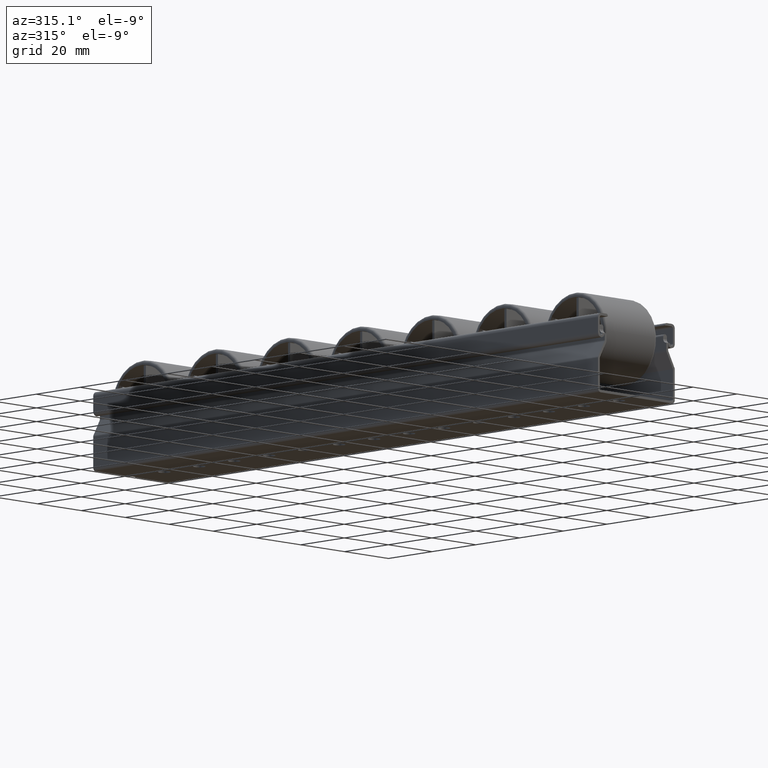
[diagram: clean part render]
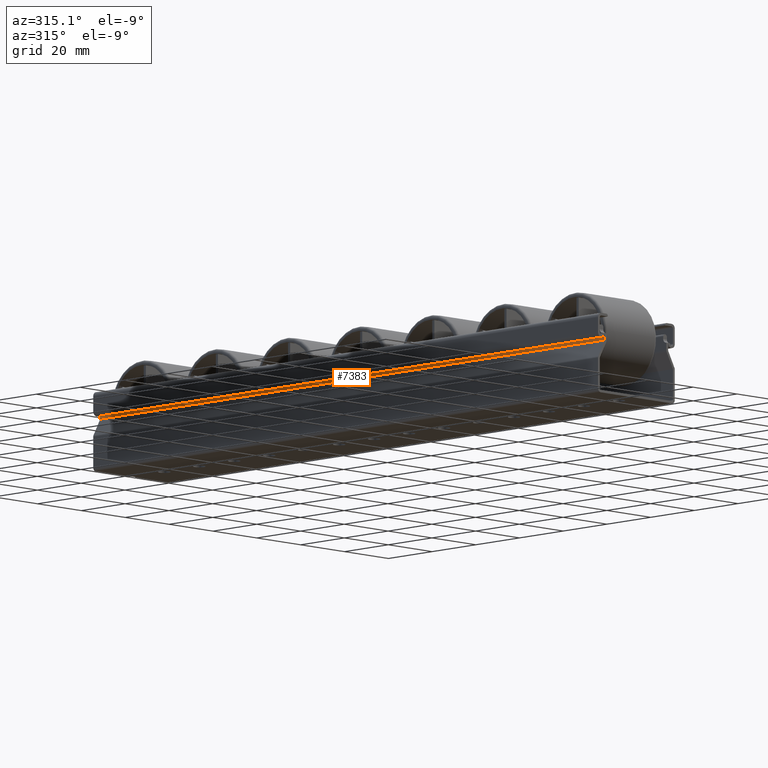
[diagram: same view with one face highlighted and labeled with its STEP entity id]
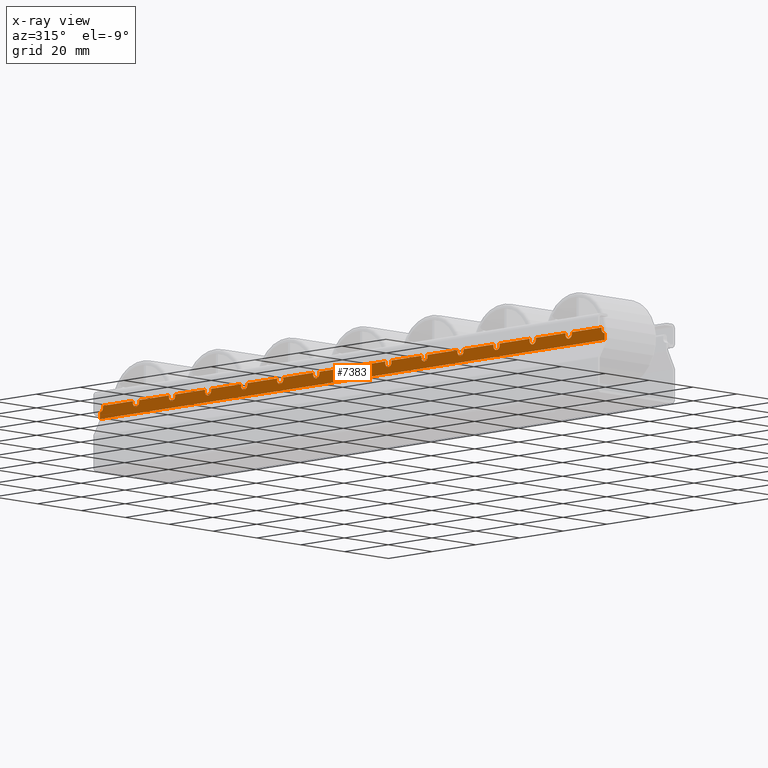
[diagram: x-ray of the same camera — body ghosted, the highlighted face saturated]
A machine part, auxiliary view. The second image highlights one B-rep face of the part: STEP entity #7383.
The next image is the same camera in x-ray: the body ghosted, the highlighted face saturated — about 0% of this face is hidden behind the body in this view.
In plain terms, the highlighted planar face has unit normal (-1, -0, -0).
Its self-contained STEP definition (entity closure, byte-faithful):
#515=FACE_OUTER_BOUND('',#874,.T.);
#874=EDGE_LOOP('',(#6220,#6221,#6222,#6223,#6224,#6225,#6226,#6227,#6228,
#6229,#6230,#6231,#6232,#6233,#6234,#6235,#6236,#6237,#6238,#6239,#6240,
#6241,#6242,#6243,#6244,#6245,#6246,#6247,#6248,#6249,#6250,#6251,#6252,
#6253,#6254,#6255,#6256,#6257,#6258,#6259,#6260,#6261,#6262,#6263,#6264,
#6265,#6266,#6267,#6268,#6269,#6270,#6271,#6272,#6273,#6274,#6275,#6276,
#6277,#6278,#6279));
#1069=CIRCLE('',#7530,1.425);
#1091=CIRCLE('',#7561,1.425);
#1111=CIRCLE('',#7589,1.425);
#1131=CIRCLE('',#7617,1.425);
#1151=CIRCLE('',#7645,1.425);
#1171=CIRCLE('',#7673,1.425);
#1191=CIRCLE('',#7701,1.425);
#1211=CIRCLE('',#7729,1.425);
#1231=CIRCLE('',#7757,1.425);
#1251=CIRCLE('',#7785,1.425);
#1271=CIRCLE('',#7813,1.425);
#1291=CIRCLE('',#7841,1.425);
#1311=CIRCLE('',#7869,1.425);
#1331=CIRCLE('',#7897,1.425);
#1359=CIRCLE('',#8043,1.425);
#1482=LINE('',#10601,#2178);
#1512=LINE('',#10716,#2208);
#1518=LINE('',#10735,#2214);
#1536=LINE('',#10804,#2232);
#1542=LINE('',#10823,#2238);
#1560=LINE('',#10892,#2256);
#1566=LINE('',#10911,#2262);
#1584=LINE('',#10980,#2280);
#1590=LINE('',#10999,#2286);
#1608=LINE('',#11068,#2304);
#1614=LINE('',#11087,#2310);
#1632=LINE('',#11156,#2328);
#1638=LINE('',#11175,#2334);
#1656=LINE('',#11244,#2352);
#1662=LINE('',#11263,#2358);
#1680=LINE('',#11332,#2376);
#1686=LINE('',#11351,#2382);
#1704=LINE('',#11420,#2400);
#1710=LINE('',#11439,#2406);
#1728=LINE('',#11508,#2424);
#1734=LINE('',#11527,#2430);
#1752=LINE('',#11596,#2448);
#1758=LINE('',#11615,#2454);
#1776=LINE('',#11684,#2472);
#1782=LINE('',#11703,#2478);
#1800=LINE('',#11772,#2496);
#1806=LINE('',#11791,#2502);
#1944=LINE('',#12078,#2640);
#1945=LINE('',#12081,#2641);
#1946=LINE('',#12083,#2642);
#1947=LINE('',#12085,#2643);
#1948=LINE('',#12087,#2644);
#1949=LINE('',#12089,#2645);
#1950=LINE('',#12091,#2646);
#1951=LINE('',#12093,#2647);
#1952=LINE('',#12095,#2648);
#1953=LINE('',#12097,#2649);
#1954=LINE('',#12099,#2650);
#1955=LINE('',#12101,#2651);
#1956=LINE('',#12103,#2652);
#2010=LINE('',#12204,#2706);
#2011=LINE('',#12207,#2707);
#2012=LINE('',#12209,#2708);
#2013=LINE('',#12210,#2709);
#2014=LINE('',#12211,#2710);
#2178=VECTOR('',#8315,0.549999999999994);
#2208=VECTOR('',#8419,0.549999999999994);
#2214=VECTOR('',#8435,0.549999999999993);
#2232=VECTOR('',#8499,0.549999999999994);
#2238=VECTOR('',#8515,0.549999999999993);
#2256=VECTOR('',#8579,0.549999999999994);
#2262=VECTOR('',#8595,0.549999999999993);
#2280=VECTOR('',#8659,0.549999999999994);
#2286=VECTOR('',#8675,0.549999999999993);
#2304=VECTOR('',#8739,0.549999999999994);
#2310=VECTOR('',#8755,0.549999999999993);
#2328=VECTOR('',#8819,0.549999999999994);
#2334=VECTOR('',#8835,0.549999999999993);
#2352=VECTOR('',#8899,0.549999999999994);
#2358=VECTOR('',#8915,0.549999999999993);
#2376=VECTOR('',#8979,0.549999999999994);
#2382=VECTOR('',#8995,0.549999999999993);
#2400=VECTOR('',#9059,0.549999999999994);
#2406=VECTOR('',#9075,0.549999999999993);
#2424=VECTOR('',#9139,0.549999999999994);
#2430=VECTOR('',#9155,0.549999999999993);
#2448=VECTOR('',#9219,0.549999999999994);
#2454=VECTOR('',#9235,0.549999999999993);
#2472=VECTOR('',#9299,0.549999999999994);
#2478=VECTOR('',#9315,0.549999999999993);
#2496=VECTOR('',#9379,0.549999999999994);
#2502=VECTOR('',#9395,0.549999999999993);
#2640=VECTOR('',#9733,13.65);
#2641=VECTOR('',#9738,13.65);
#2642=VECTOR('',#9741,13.65);
#2643=VECTOR('',#9744,13.65);
#2644=VECTOR('',#9747,13.65);
#2645=VECTOR('',#9750,13.65);
#2646=VECTOR('',#9753,13.65);
#2647=VECTOR('',#9756,13.65);
#2648=VECTOR('',#9759,13.65);
#2649=VECTOR('',#9762,13.65);
#2650=VECTOR('',#9765,13.65);
#2651=VECTOR('',#9768,13.6499999999999);
#2652=VECTOR('',#9771,13.65);
#2706=VECTOR('',#9901,0.549999999999993);
#2707=VECTOR('',#9904,2.24523883871566);
#2708=VECTOR('',#9905,231.);
#2709=VECTOR('',#9906,2.24523883871566);
#2710=VECTOR('',#9907,13.65);
#2874=VERTEX_POINT('',#10598);
#2875=VERTEX_POINT('',#10600);
#2893=VERTEX_POINT('',#10643);
#2922=VERTEX_POINT('',#10713);
#2923=VERTEX_POINT('',#10715);
#2930=VERTEX_POINT('',#10732);
#2931=VERTEX_POINT('',#10734);
#2958=VERTEX_POINT('',#10801);
#2959=VERTEX_POINT('',#10803);
#2966=VERTEX_POINT('',#10820);
#2967=VERTEX_POINT('',#10822);
#2994=VERTEX_POINT('',#10889);
#2995=VERTEX_POINT('',#10891);
#3002=VERTEX_POINT('',#10908);
#3003=VERTEX_POINT('',#10910);
#3030=VERTEX_POINT('',#10977);
#3031=VERTEX_POINT('',#10979);
#3038=VERTEX_POINT('',#10996);
#3039=VERTEX_POINT('',#10998);
#3066=VERTEX_POINT('',#11065);
#3067=VERTEX_POINT('',#11067);
#3074=VERTEX_POINT('',#11084);
#3075=VERTEX_POINT('',#11086);
#3102=VERTEX_POINT('',#11153);
#3103=VERTEX_POINT('',#11155);
#3110=VERTEX_POINT('',#11172);
#3111=VERTEX_POINT('',#11174);
#3138=VERTEX_POINT('',#11241);
#3139=VERTEX_POINT('',#11243);
#3146=VERTEX_POINT('',#11260);
#3147=VERTEX_POINT('',#11262);
#3174=VERTEX_POINT('',#11329);
#3175=VERTEX_POINT('',#11331);
#3182=VERTEX_POINT('',#11348);
#3183=VERTEX_POINT('',#11350);
#3210=VERTEX_POINT('',#11417);
#3211=VERTEX_POINT('',#11419);
#3218=VERTEX_POINT('',#11436);
#3219=VERTEX_POINT('',#11438);
#3246=VERTEX_POINT('',#11505);
#3247=VERTEX_POINT('',#11507);
#3254=VERTEX_POINT('',#11524);
#3255=VERTEX_POINT('',#11526);
#3282=VERTEX_POINT('',#11593);
#3283=VERTEX_POINT('',#11595);
#3290=VERTEX_POINT('',#11612);
#3291=VERTEX_POINT('',#11614);
#3318=VERTEX_POINT('',#11681);
#3319=VERTEX_POINT('',#11683);
#3326=VERTEX_POINT('',#11700);
#3327=VERTEX_POINT('',#11702);
#3354=VERTEX_POINT('',#11769);
#3355=VERTEX_POINT('',#11771);
#3362=VERTEX_POINT('',#11788);
#3363=VERTEX_POINT('',#11790);
#3412=VERTEX_POINT('',#12077);
#3420=VERTEX_POINT('',#12197);
#3421=VERTEX_POINT('',#12199);
#3422=VERTEX_POINT('',#12206);
#3423=VERTEX_POINT('',#12208);
#3612=EDGE_CURVE('',#2875,#2874,#1482,.T.);
#3634=EDGE_CURVE('',#2874,#2893,#1069,.T.);
#3668=EDGE_CURVE('',#2923,#2922,#1512,.T.);
#3678=EDGE_CURVE('',#2931,#2930,#1518,.T.);
#3681=EDGE_CURVE('',#2922,#2931,#1091,.T.);
#3712=EDGE_CURVE('',#2959,#2958,#1536,.T.);
#3722=EDGE_CURVE('',#2967,#2966,#1542,.T.);
#3725=EDGE_CURVE('',#2958,#2967,#1111,.T.);
#3756=EDGE_CURVE('',#2995,#2994,#1560,.T.);
#3766=EDGE_CURVE('',#3003,#3002,#1566,.T.);
#3769=EDGE_CURVE('',#2994,#3003,#1131,.T.);
#3800=EDGE_CURVE('',#3031,#3030,#1584,.T.);
#3810=EDGE_CURVE('',#3039,#3038,#1590,.T.);
#3813=EDGE_CURVE('',#3030,#3039,#1151,.T.);
#3844=EDGE_CURVE('',#3067,#3066,#1608,.T.);
#3854=EDGE_CURVE('',#3075,#3074,#1614,.T.);
#3857=EDGE_CURVE('',#3066,#3075,#1171,.T.);
#3888=EDGE_CURVE('',#3103,#3102,#1632,.T.);
#3898=EDGE_CURVE('',#3111,#3110,#1638,.T.);
#3901=EDGE_CURVE('',#3102,#3111,#1191,.T.);
#3932=EDGE_CURVE('',#3139,#3138,#1656,.T.);
#3942=EDGE_CURVE('',#3147,#3146,#1662,.T.);
#3945=EDGE_CURVE('',#3138,#3147,#1211,.T.);
#3976=EDGE_CURVE('',#3175,#3174,#1680,.T.);
#3986=EDGE_CURVE('',#3183,#3182,#1686,.T.);
#3989=EDGE_CURVE('',#3174,#3183,#1231,.T.);
#4020=EDGE_CURVE('',#3211,#3210,#1704,.T.);
#4030=EDGE_CURVE('',#3219,#3218,#1710,.T.);
#4033=EDGE_CURVE('',#3210,#3219,#1251,.T.);
#4064=EDGE_CURVE('',#3247,#3246,#1728,.T.);
#4074=EDGE_CURVE('',#3255,#3254,#1734,.T.);
#4077=EDGE_CURVE('',#3246,#3255,#1271,.T.);
#4108=EDGE_CURVE('',#3283,#3282,#1752,.T.);
#4118=EDGE_CURVE('',#3291,#3290,#1758,.T.);
#4121=EDGE_CURVE('',#3282,#3291,#1291,.T.);
#4152=EDGE_CURVE('',#3319,#3318,#1776,.T.);
#4162=EDGE_CURVE('',#3327,#3326,#1782,.T.);
#4165=EDGE_CURVE('',#3318,#3327,#1311,.T.);
#4196=EDGE_CURVE('',#3355,#3354,#1800,.T.);
#4206=EDGE_CURVE('',#3363,#3362,#1806,.T.);
#4209=EDGE_CURVE('',#3354,#3363,#1331,.T.);
#4369=EDGE_CURVE('',#3412,#3355,#1944,.T.);
#4371=EDGE_CURVE('',#3362,#3319,#1945,.T.);
#4372=EDGE_CURVE('',#3326,#3283,#1946,.T.);
#4373=EDGE_CURVE('',#3290,#3247,#1947,.T.);
#4374=EDGE_CURVE('',#3254,#3211,#1948,.T.);
#4375=EDGE_CURVE('',#3218,#3175,#1949,.T.);
#4376=EDGE_CURVE('',#3182,#3139,#1950,.T.);
#4377=EDGE_CURVE('',#3146,#3103,#1951,.T.);
#4378=EDGE_CURVE('',#3110,#3067,#1952,.T.);
#4379=EDGE_CURVE('',#3074,#3031,#1953,.T.);
#4380=EDGE_CURVE('',#3038,#2995,#1954,.T.);
#4381=EDGE_CURVE('',#3002,#2959,#1955,.T.);
#4382=EDGE_CURVE('',#2966,#2923,#1956,.T.);
#4438=EDGE_CURVE('',#3421,#3420,#1359,.T.);
#4440=EDGE_CURVE('',#3420,#3412,#2010,.T.);
#4441=EDGE_CURVE('',#3422,#2893,#2011,.T.);
#4442=EDGE_CURVE('',#3423,#3422,#2012,.T.);
#4443=EDGE_CURVE('',#3421,#3423,#2013,.T.);
#4444=EDGE_CURVE('',#2930,#2875,#2014,.T.);
#6220=ORIENTED_EDGE('',*,*,#3634,.T.);
#6221=ORIENTED_EDGE('',*,*,#4441,.F.);
#6222=ORIENTED_EDGE('',*,*,#4442,.F.);
#6223=ORIENTED_EDGE('',*,*,#4443,.F.);
#6224=ORIENTED_EDGE('',*,*,#4438,.T.);
#6225=ORIENTED_EDGE('',*,*,#4440,.T.);
#6226=ORIENTED_EDGE('',*,*,#4369,.T.);
#6227=ORIENTED_EDGE('',*,*,#4196,.T.);
#6228=ORIENTED_EDGE('',*,*,#4209,.T.);
#6229=ORIENTED_EDGE('',*,*,#4206,.T.);
#6230=ORIENTED_EDGE('',*,*,#4371,.T.);
#6231=ORIENTED_EDGE('',*,*,#4152,.T.);
#6232=ORIENTED_EDGE('',*,*,#4165,.T.);
#6233=ORIENTED_EDGE('',*,*,#4162,.T.);
#6234=ORIENTED_EDGE('',*,*,#4372,.T.);
#6235=ORIENTED_EDGE('',*,*,#4108,.T.);
#6236=ORIENTED_EDGE('',*,*,#4121,.T.);
#6237=ORIENTED_EDGE('',*,*,#4118,.T.);
#6238=ORIENTED_EDGE('',*,*,#4373,.T.);
#6239=ORIENTED_EDGE('',*,*,#4064,.T.);
#6240=ORIENTED_EDGE('',*,*,#4077,.T.);
#6241=ORIENTED_EDGE('',*,*,#4074,.T.);
#6242=ORIENTED_EDGE('',*,*,#4374,.T.);
#6243=ORIENTED_EDGE('',*,*,#4020,.T.);
#6244=ORIENTED_EDGE('',*,*,#4033,.T.);
#6245=ORIENTED_EDGE('',*,*,#4030,.T.);
#6246=ORIENTED_EDGE('',*,*,#4375,.T.);
#6247=ORIENTED_EDGE('',*,*,#3976,.T.);
#6248=ORIENTED_EDGE('',*,*,#3989,.T.);
#6249=ORIENTED_EDGE('',*,*,#3986,.T.);
#6250=ORIENTED_EDGE('',*,*,#4376,.T.);
#6251=ORIENTED_EDGE('',*,*,#3932,.T.);
#6252=ORIENTED_EDGE('',*,*,#3945,.T.);
#6253=ORIENTED_EDGE('',*,*,#3942,.T.);
#6254=ORIENTED_EDGE('',*,*,#4377,.T.);
#6255=ORIENTED_EDGE('',*,*,#3888,.T.);
#6256=ORIENTED_EDGE('',*,*,#3901,.T.);
#6257=ORIENTED_EDGE('',*,*,#3898,.T.);
#6258=ORIENTED_EDGE('',*,*,#4378,.T.);
#6259=ORIENTED_EDGE('',*,*,#3844,.T.);
#6260=ORIENTED_EDGE('',*,*,#3857,.T.);
#6261=ORIENTED_EDGE('',*,*,#3854,.T.);
#6262=ORIENTED_EDGE('',*,*,#4379,.T.);
#6263=ORIENTED_EDGE('',*,*,#3800,.T.);
#6264=ORIENTED_EDGE('',*,*,#3813,.T.);
#6265=ORIENTED_EDGE('',*,*,#3810,.T.);
#6266=ORIENTED_EDGE('',*,*,#4380,.T.);
#6267=ORIENTED_EDGE('',*,*,#3756,.T.);
#6268=ORIENTED_EDGE('',*,*,#3769,.T.);
#6269=ORIENTED_EDGE('',*,*,#3766,.T.);
#6270=ORIENTED_EDGE('',*,*,#4381,.T.);
#6271=ORIENTED_EDGE('',*,*,#3712,.T.);
#6272=ORIENTED_EDGE('',*,*,#3725,.T.);
#6273=ORIENTED_EDGE('',*,*,#3722,.T.);
#6274=ORIENTED_EDGE('',*,*,#4382,.T.);
#6275=ORIENTED_EDGE('',*,*,#3668,.T.);
#6276=ORIENTED_EDGE('',*,*,#3681,.T.);
#6277=ORIENTED_EDGE('',*,*,#3678,.T.);
#6278=ORIENTED_EDGE('',*,*,#4444,.T.);
#6279=ORIENTED_EDGE('',*,*,#3612,.T.);
#7073=PLANE('',#8046);
#7383=ADVANCED_FACE('',(#515),#7073,.T.);
#7530=AXIS2_PLACEMENT_3D('',#10645,#8354,#8355);
#7561=AXIS2_PLACEMENT_3D('',#10739,#8441,#8442);
#7589=AXIS2_PLACEMENT_3D('',#10827,#8521,#8522);
#7617=AXIS2_PLACEMENT_3D('',#10915,#8601,#8602);
#7645=AXIS2_PLACEMENT_3D('',#11003,#8681,#8682);
#7673=AXIS2_PLACEMENT_3D('',#11091,#8761,#8762);
#7701=AXIS2_PLACEMENT_3D('',#11179,#8841,#8842);
#7729=AXIS2_PLACEMENT_3D('',#11267,#8921,#8922);
#7757=AXIS2_PLACEMENT_3D('',#11355,#9001,#9002);
#7785=AXIS2_PLACEMENT_3D('',#11443,#9081,#9082);
#7813=AXIS2_PLACEMENT_3D('',#11531,#9161,#9162);
#7841=AXIS2_PLACEMENT_3D('',#11619,#9241,#9242);
#7869=AXIS2_PLACEMENT_3D('',#11707,#9321,#9322);
#7897=AXIS2_PLACEMENT_3D('',#11795,#9401,#9402);
#8043=AXIS2_PLACEMENT_3D('',#12200,#9894,#9895);
#8046=AXIS2_PLACEMENT_3D('',#12205,#9902,#9903);
#8315=DIRECTION('',(-1.05228454317816E-15,-1.,0.));
#8354=DIRECTION('center_axis',(-1.,1.05228454317816E-15,0.));
#8355=DIRECTION('ref_axis',(8.79043762949531E-32,-1.94775969232484E-16,
-1.));
#8419=DIRECTION('',(-1.05228454317816E-15,-1.,0.));
#8435=DIRECTION('',(1.05228454317816E-15,1.,0.));
#8441=DIRECTION('center_axis',(-1.,1.05228454317816E-15,0.));
#8442=DIRECTION('ref_axis',(8.79043762949531E-32,-1.94775969232484E-16,
-1.));
#8499=DIRECTION('',(-1.05228454317816E-15,-1.,0.));
#8515=DIRECTION('',(1.05228454317816E-15,1.,0.));
#8521=DIRECTION('center_axis',(-1.,1.05228454317816E-15,0.));
#8522=DIRECTION('ref_axis',(8.79043762949531E-32,-1.94775969232484E-16,
-1.));
#8579=DIRECTION('',(-1.05228454317816E-15,-1.,0.));
#8595=DIRECTION('',(1.05228454317816E-15,1.,0.));
#8601=DIRECTION('center_axis',(-1.,1.05228454317816E-15,0.));
#8602=DIRECTION('ref_axis',(8.79043762949531E-32,-1.94775969232484E-16,
-1.));
#8659=DIRECTION('',(-1.05228454317816E-15,-1.,0.));
#8675=DIRECTION('',(1.05228454317816E-15,1.,0.));
#8681=DIRECTION('center_axis',(-1.,1.05228454317816E-15,0.));
#8682=DIRECTION('ref_axis',(8.79043762949531E-32,-1.94775969232484E-16,
-1.));
#8739=DIRECTION('',(-1.05228454317816E-15,-1.,0.));
#8755=DIRECTION('',(1.05228454317816E-15,1.,0.));
#8761=DIRECTION('center_axis',(-1.,1.05228454317816E-15,0.));
#8762=DIRECTION('ref_axis',(8.79043762949531E-32,-1.94775969232484E-16,
-1.));
#8819=DIRECTION('',(-1.05228454317816E-15,-1.,0.));
#8835=DIRECTION('',(1.05228454317816E-15,1.,0.));
#8841=DIRECTION('center_axis',(-1.,1.05228454317816E-15,0.));
#8842=DIRECTION('ref_axis',(8.79043762949531E-32,-1.94775969232484E-16,
-1.));
#8899=DIRECTION('',(-1.05228454317816E-15,-1.,0.));
#8915=DIRECTION('',(1.05228454317816E-15,1.,0.));
#8921=DIRECTION('center_axis',(-1.,1.05228454317816E-15,0.));
#8922=DIRECTION('ref_axis',(8.79043762949531E-32,-1.94775969232484E-16,
-1.));
#8979=DIRECTION('',(-1.05228454317816E-15,-1.,0.));
#8995=DIRECTION('',(1.05228454317816E-15,1.,0.));
#9001=DIRECTION('center_axis',(-1.,1.05228454317816E-15,0.));
#9002=DIRECTION('ref_axis',(8.79043762949531E-32,-1.94775969232484E-16,
-1.));
#9059=DIRECTION('',(-1.05228454317816E-15,-1.,0.));
#9075=DIRECTION('',(1.05228454317816E-15,1.,0.));
#9081=DIRECTION('center_axis',(-1.,1.05228454317816E-15,0.));
#9082=DIRECTION('ref_axis',(8.79043762949531E-32,-1.94775969232484E-16,
-1.));
#9139=DIRECTION('',(-1.05228454317816E-15,-1.,0.));
#9155=DIRECTION('',(1.05228454317816E-15,1.,0.));
#9161=DIRECTION('center_axis',(-1.,1.05228454317816E-15,0.));
#9162=DIRECTION('ref_axis',(8.79043762949531E-32,-1.94775969232484E-16,
-1.));
#9219=DIRECTION('',(-1.05228454317816E-15,-1.,0.));
#9235=DIRECTION('',(1.05228454317816E-15,1.,0.));
#9241=DIRECTION('center_axis',(-1.,1.05228454317816E-15,0.));
#9242=DIRECTION('ref_axis',(8.79043762949531E-32,-1.94775969232484E-16,
-1.));
#9299=DIRECTION('',(-1.05228454317816E-15,-1.,0.));
#9315=DIRECTION('',(1.05228454317816E-15,1.,0.));
#9321=DIRECTION('center_axis',(-1.,1.05228454317816E-15,0.));
#9322=DIRECTION('ref_axis',(8.79043762949531E-32,-1.94775969232484E-16,
-1.));
#9379=DIRECTION('',(-1.05228454317816E-15,-1.,0.));
#9395=DIRECTION('',(1.05228454317816E-15,1.,0.));
#9401=DIRECTION('center_axis',(-1.,1.05228454317816E-15,0.));
#9402=DIRECTION('ref_axis',(8.79043762949531E-32,-1.94775969232484E-16,
-1.));
#9733=DIRECTION('',(0.,0.,1.));
#9738=DIRECTION('',(0.,0.,1.));
#9741=DIRECTION('',(0.,0.,1.));
#9744=DIRECTION('',(0.,0.,1.));
#9747=DIRECTION('',(0.,0.,1.));
#9750=DIRECTION('',(0.,0.,1.));
#9753=DIRECTION('',(0.,0.,1.));
#9756=DIRECTION('',(0.,0.,1.));
#9759=DIRECTION('',(0.,0.,1.));
#9762=DIRECTION('',(0.,0.,1.));
#9765=DIRECTION('',(0.,0.,1.));
#9768=DIRECTION('',(0.,0.,1.));
#9771=DIRECTION('',(0.,0.,1.));
#9894=DIRECTION('center_axis',(-1.,1.05228454317816E-15,0.));
#9895=DIRECTION('ref_axis',(8.79043762949531E-32,-1.94775969232484E-16,
-1.));
#9901=DIRECTION('',(1.05228454317816E-15,1.,0.));
#9902=DIRECTION('center_axis',(1.,-1.05228454317816E-15,0.));
#9903=DIRECTION('ref_axis',(1.06581410364015E-15,1.,0.));
#9904=DIRECTION('',(1.05228454317816E-15,1.,0.));
#9905=DIRECTION('',(0.,0.,1.));
#9906=DIRECTION('',(-1.05228454317816E-15,-1.,0.));
#9907=DIRECTION('',(0.,0.,1.));
#10598=CARTESIAN_POINT('',(22.4885522336796,9.31081899891223,229.575));
#10600=CARTESIAN_POINT('',(22.4885522336796,9.86081899891222,229.575));
#10601=CARTESIAN_POINT('',(22.4885522336796,7.47569957955437,229.575));
#10643=CARTESIAN_POINT('',(22.4885522336796,7.88581899891223,231.));
#10645=CARTESIAN_POINT('Origin',(22.4885522336796,9.31081899891223,231.));
#10713=CARTESIAN_POINT('',(22.4885522336796,9.31081899891223,213.075));
#10715=CARTESIAN_POINT('',(22.4885522336796,9.86081899891222,213.075));
#10716=CARTESIAN_POINT('',(22.4885522336796,7.47569957955437,213.075));
#10732=CARTESIAN_POINT('',(22.4885522336796,9.86081899891222,215.925));
#10734=CARTESIAN_POINT('',(22.4885522336796,9.31081899891223,215.925));
#10735=CARTESIAN_POINT('',(22.4885522336796,8.2631995795544,215.925));
#10739=CARTESIAN_POINT('Origin',(22.4885522336796,9.31081899891223,214.5));
#10801=CARTESIAN_POINT('',(22.4885522336796,9.31081899891223,196.575));
#10803=CARTESIAN_POINT('',(22.4885522336796,9.86081899891222,196.575));
#10804=CARTESIAN_POINT('',(22.4885522336796,7.47569957955437,196.575));
#10820=CARTESIAN_POINT('',(22.4885522336796,9.86081899891222,199.425));
#10822=CARTESIAN_POINT('',(22.4885522336796,9.31081899891223,199.425));
#10823=CARTESIAN_POINT('',(22.4885522336796,8.2631995795544,199.425));
#10827=CARTESIAN_POINT('Origin',(22.4885522336796,9.31081899891223,198.));
#10889=CARTESIAN_POINT('',(22.4885522336796,9.31081899891223,180.075));
#10891=CARTESIAN_POINT('',(22.4885522336796,9.86081899891222,180.075));
#10892=CARTESIAN_POINT('',(22.4885522336796,7.47569957955437,180.075));
#10908=CARTESIAN_POINT('',(22.4885522336796,9.86081899891222,182.925));
#10910=CARTESIAN_POINT('',(22.4885522336796,9.31081899891223,182.925));
#10911=CARTESIAN_POINT('',(22.4885522336796,8.2631995795544,182.925));
#10915=CARTESIAN_POINT('Origin',(22.4885522336796,9.31081899891223,181.5));
#10977=CARTESIAN_POINT('',(22.4885522336796,9.31081899891223,163.575));
#10979=CARTESIAN_POINT('',(22.4885522336796,9.86081899891222,163.575));
#10980=CARTESIAN_POINT('',(22.4885522336796,7.47569957955437,163.575));
#10996=CARTESIAN_POINT('',(22.4885522336796,9.86081899891222,166.425));
#10998=CARTESIAN_POINT('',(22.4885522336796,9.31081899891223,166.425));
#10999=CARTESIAN_POINT('',(22.4885522336796,8.2631995795544,166.425));
#11003=CARTESIAN_POINT('Origin',(22.4885522336796,9.31081899891223,165.));
#11065=CARTESIAN_POINT('',(22.4885522336796,9.31081899891223,147.075));
#11067=CARTESIAN_POINT('',(22.4885522336796,9.86081899891222,147.075));
#11068=CARTESIAN_POINT('',(22.4885522336796,7.47569957955437,147.075));
#11084=CARTESIAN_POINT('',(22.4885522336796,9.86081899891222,149.925));
#11086=CARTESIAN_POINT('',(22.4885522336796,9.31081899891223,149.925));
#11087=CARTESIAN_POINT('',(22.4885522336796,8.2631995795544,149.925));
#11091=CARTESIAN_POINT('Origin',(22.4885522336796,9.31081899891223,148.5));
#11153=CARTESIAN_POINT('',(22.4885522336796,9.31081899891223,130.575));
#11155=CARTESIAN_POINT('',(22.4885522336796,9.86081899891222,130.575));
#11156=CARTESIAN_POINT('',(22.4885522336796,7.47569957955437,130.575));
#11172=CARTESIAN_POINT('',(22.4885522336796,9.86081899891222,133.425));
#11174=CARTESIAN_POINT('',(22.4885522336796,9.31081899891223,133.425));
#11175=CARTESIAN_POINT('',(22.4885522336796,8.2631995795544,133.425));
#11179=CARTESIAN_POINT('Origin',(22.4885522336796,9.31081899891223,132.));
#11241=CARTESIAN_POINT('',(22.4885522336796,9.31081899891223,114.075));
#11243=CARTESIAN_POINT('',(22.4885522336796,9.86081899891222,114.075));
#11244=CARTESIAN_POINT('',(22.4885522336796,7.47569957955437,114.075));
#11260=CARTESIAN_POINT('',(22.4885522336796,9.86081899891222,116.925));
#11262=CARTESIAN_POINT('',(22.4885522336796,9.31081899891223,116.925));
#11263=CARTESIAN_POINT('',(22.4885522336796,8.2631995795544,116.925));
#11267=CARTESIAN_POINT('Origin',(22.4885522336796,9.31081899891223,115.5));
#11329=CARTESIAN_POINT('',(22.4885522336796,9.31081899891223,97.575));
#11331=CARTESIAN_POINT('',(22.4885522336796,9.86081899891222,97.575));
#11332=CARTESIAN_POINT('',(22.4885522336796,7.47569957955437,97.575));
#11348=CARTESIAN_POINT('',(22.4885522336796,9.86081899891222,100.425));
#11350=CARTESIAN_POINT('',(22.4885522336796,9.31081899891223,100.425));
#11351=CARTESIAN_POINT('',(22.4885522336796,8.2631995795544,100.425));
#11355=CARTESIAN_POINT('Origin',(22.4885522336796,9.31081899891223,99.));
#11417=CARTESIAN_POINT('',(22.4885522336796,9.31081899891223,81.075));
#11419=CARTESIAN_POINT('',(22.4885522336796,9.86081899891222,81.075));
#11420=CARTESIAN_POINT('',(22.4885522336796,7.47569957955437,81.075));
#11436=CARTESIAN_POINT('',(22.4885522336796,9.86081899891222,83.925));
#11438=CARTESIAN_POINT('',(22.4885522336796,9.31081899891223,83.925));
#11439=CARTESIAN_POINT('',(22.4885522336796,8.2631995795544,83.925));
#11443=CARTESIAN_POINT('Origin',(22.4885522336796,9.31081899891223,82.5));
#11505=CARTESIAN_POINT('',(22.4885522336796,9.31081899891223,64.575));
#11507=CARTESIAN_POINT('',(22.4885522336796,9.86081899891222,64.575));
#11508=CARTESIAN_POINT('',(22.4885522336796,7.47569957955437,64.575));
#11524=CARTESIAN_POINT('',(22.4885522336796,9.86081899891222,67.425));
#11526=CARTESIAN_POINT('',(22.4885522336796,9.31081899891223,67.425));
#11527=CARTESIAN_POINT('',(22.4885522336796,8.2631995795544,67.425));
#11531=CARTESIAN_POINT('Origin',(22.4885522336796,9.31081899891223,66.));
#11593=CARTESIAN_POINT('',(22.4885522336796,9.31081899891223,48.075));
#11595=CARTESIAN_POINT('',(22.4885522336796,9.86081899891222,48.075));
#11596=CARTESIAN_POINT('',(22.4885522336796,7.47569957955437,48.075));
#11612=CARTESIAN_POINT('',(22.4885522336796,9.86081899891222,50.925));
#11614=CARTESIAN_POINT('',(22.4885522336796,9.31081899891223,50.925));
#11615=CARTESIAN_POINT('',(22.4885522336796,8.2631995795544,50.925));
#11619=CARTESIAN_POINT('Origin',(22.4885522336796,9.31081899891223,49.5));
#11681=CARTESIAN_POINT('',(22.4885522336796,9.31081899891223,31.575));
#11683=CARTESIAN_POINT('',(22.4885522336796,9.86081899891222,31.575));
#11684=CARTESIAN_POINT('',(22.4885522336796,7.47569957955437,31.575));
#11700=CARTESIAN_POINT('',(22.4885522336796,9.86081899891222,34.425));
#11702=CARTESIAN_POINT('',(22.4885522336796,9.31081899891223,34.425));
#11703=CARTESIAN_POINT('',(22.4885522336796,8.2631995795544,34.425));
#11707=CARTESIAN_POINT('Origin',(22.4885522336796,9.31081899891223,33.));
#11769=CARTESIAN_POINT('',(22.4885522336796,9.31081899891223,15.075));
#11771=CARTESIAN_POINT('',(22.4885522336796,9.86081899891222,15.075));
#11772=CARTESIAN_POINT('',(22.4885522336796,7.47569957955437,15.075));
#11788=CARTESIAN_POINT('',(22.4885522336796,9.86081899891222,17.925));
#11790=CARTESIAN_POINT('',(22.4885522336796,9.31081899891223,17.925));
#11791=CARTESIAN_POINT('',(22.4885522336796,8.2631995795544,17.925));
#11795=CARTESIAN_POINT('Origin',(22.4885522336796,9.31081899891223,16.5));
#12077=CARTESIAN_POINT('',(22.4885522336796,9.86081899891222,1.425));
#12078=CARTESIAN_POINT('',(22.4885522336796,9.86081899891222,0.));
#12081=CARTESIAN_POINT('',(22.4885522336796,9.86081899891222,0.));
#12083=CARTESIAN_POINT('',(22.4885522336796,9.86081899891222,0.));
#12085=CARTESIAN_POINT('',(22.4885522336796,9.86081899891222,0.));
#12087=CARTESIAN_POINT('',(22.4885522336796,9.86081899891222,0.));
#12089=CARTESIAN_POINT('',(22.4885522336796,9.86081899891222,0.));
#12091=CARTESIAN_POINT('',(22.4885522336796,9.86081899891222,0.));
#12093=CARTESIAN_POINT('',(22.4885522336796,9.86081899891222,0.));
#12095=CARTESIAN_POINT('',(22.4885522336796,9.86081899891222,0.));
#12097=CARTESIAN_POINT('',(22.4885522336796,9.86081899891222,0.));
#12099=CARTESIAN_POINT('',(22.4885522336796,9.86081899891222,0.));
#12101=CARTESIAN_POINT('',(22.4885522336796,9.86081899891222,0.));
#12103=CARTESIAN_POINT('',(22.4885522336796,9.86081899891222,0.));
#12197=CARTESIAN_POINT('',(22.4885522336796,9.31081899891223,1.425));
#12199=CARTESIAN_POINT('',(22.4885522336796,7.88581899891223,0.));
#12200=CARTESIAN_POINT('Origin',(22.4885522336796,9.31081899891223,0.));
#12204=CARTESIAN_POINT('',(22.4885522336796,8.2631995795544,1.425));
#12205=CARTESIAN_POINT('Origin',(22.4885522336796,5.64058016019657,0.));
#12206=CARTESIAN_POINT('',(22.4885522336796,5.64058016019657,231.));
#12207=CARTESIAN_POINT('',(22.4885522336796,9.86081899891222,231.));
#12208=CARTESIAN_POINT('',(22.4885522336796,5.64058016019657,0.));
#12209=CARTESIAN_POINT('',(22.4885522336796,5.64058016019657,0.));
#12210=CARTESIAN_POINT('',(22.4885522336796,9.86081899891222,0.));
#12211=CARTESIAN_POINT('',(22.4885522336796,9.86081899891222,0.));